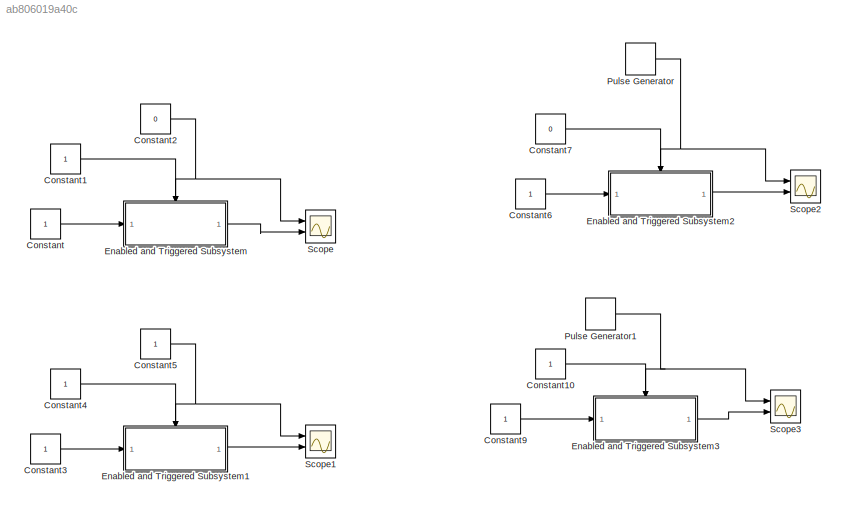
MODEL slx_ab806019a40c
KIND model
CONFIG AbsTol = auto
CONFIG EnableMultiTasking = off
CONFIG FixedStep = auto
CONFIG MaxStep = auto
CONFIG MinStep = auto
CONFIG RelTol = 1e-3
CONFIG SampleTimeConstraint = Unconstrained
CONFIG SolverName = VariableStepAuto
CONFIG StartTime = 0.0
CONFIG StopTime = 10.0
BLOCK [Constant] Constant
BLOCK [Constant] Constant1
BLOCK [Constant] Constant10
BLOCK [Constant] Constant2
  Value = 0
BLOCK [Constant] Constant3
BLOCK [Constant] Constant4
BLOCK [Constant] Constant5
BLOCK [Constant] Constant6
BLOCK [Constant] Constant7
  Value = 0
BLOCK [Constant] Constant9
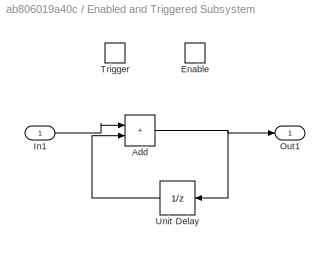
BLOCK [SubSystem] Enabled and Triggered Subsystem
  Ports = [1, 1, 1, 1]
  RequestExecContextInheritance = off
  TreatAsAtomicUnit = on
BLOCK [Sum] Enabled and Triggered Subsystem/Add
  IconShape = rectangular
  Ports = [2, 1]
BLOCK [EnablePort] Enabled and Triggered Subsystem/Enable
  Ports = []
BLOCK [Inport] Enabled and Triggered Subsystem/In1
BLOCK [Outport] Enabled and Triggered Subsystem/Out1
BLOCK [TriggerPort] Enabled and Triggered Subsystem/Trigger
  Ports = []
  StatesWhenEnabling = held
  VariantControl = (inherit)
BLOCK [UnitDelay] Enabled and Triggered Subsystem/Unit Delay
  HasFrameUpgradeWarning = on
  NameLocation = top
  SampleTime = -1
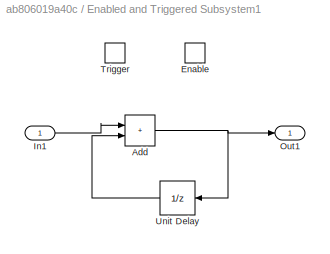
BLOCK [SubSystem] Enabled and Triggered Subsystem1
  Ports = [1, 1, 1, 1]
  RequestExecContextInheritance = off
  TreatAsAtomicUnit = on
BLOCK [Sum] Enabled and Triggered Subsystem1/Add
  IconShape = rectangular
  Ports = [2, 1]
BLOCK [EnablePort] Enabled and Triggered Subsystem1/Enable
  Ports = []
BLOCK [Inport] Enabled and Triggered Subsystem1/In1
BLOCK [Outport] Enabled and Triggered Subsystem1/Out1
BLOCK [TriggerPort] Enabled and Triggered Subsystem1/Trigger
  Ports = []
  StatesWhenEnabling = held
  VariantControl = (inherit)
BLOCK [UnitDelay] Enabled and Triggered Subsystem1/Unit Delay
  HasFrameUpgradeWarning = on
  NameLocation = top
  SampleTime = -1
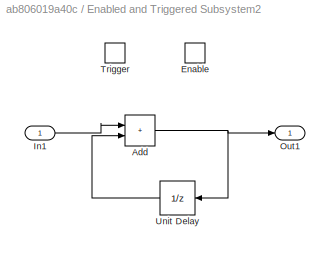
BLOCK [SubSystem] Enabled and Triggered Subsystem2
  Ports = [1, 1, 1, 1]
  RequestExecContextInheritance = off
  TreatAsAtomicUnit = on
BLOCK [Sum] Enabled and Triggered Subsystem2/Add
  IconShape = rectangular
  Ports = [2, 1]
BLOCK [EnablePort] Enabled and Triggered Subsystem2/Enable
  Ports = []
BLOCK [Inport] Enabled and Triggered Subsystem2/In1
BLOCK [Outport] Enabled and Triggered Subsystem2/Out1
BLOCK [TriggerPort] Enabled and Triggered Subsystem2/Trigger
  Ports = []
  StatesWhenEnabling = held
  VariantControl = (inherit)
BLOCK [UnitDelay] Enabled and Triggered Subsystem2/Unit Delay
  HasFrameUpgradeWarning = on
  NameLocation = top
  SampleTime = -1
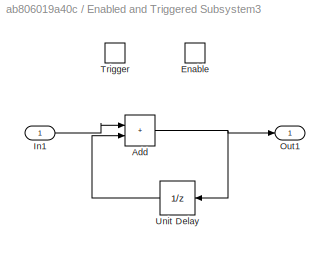
BLOCK [SubSystem] Enabled and Triggered Subsystem3
  Ports = [1, 1, 1, 1]
  RequestExecContextInheritance = off
  TreatAsAtomicUnit = on
BLOCK [Sum] Enabled and Triggered Subsystem3/Add
  IconShape = rectangular
  Ports = [2, 1]
BLOCK [EnablePort] Enabled and Triggered Subsystem3/Enable
  Ports = []
BLOCK [Inport] Enabled and Triggered Subsystem3/In1
BLOCK [Outport] Enabled and Triggered Subsystem3/Out1
BLOCK [TriggerPort] Enabled and Triggered Subsystem3/Trigger
  Ports = []
  StatesWhenEnabling = held
  VariantControl = (inherit)
BLOCK [UnitDelay] Enabled and Triggered Subsystem3/Unit Delay
  HasFrameUpgradeWarning = on
  NameLocation = top
  SampleTime = -1
BLOCK [DiscretePulseGenerator] Pulse Generator
  Ports = [0, 1]
  PulseType = Time based
  PulseWidth = 50
BLOCK [DiscretePulseGenerator] Pulse Generator1
  Ports = [0, 1]
  PulseType = Time based
  PulseWidth = 50
BLOCK [Scope] Scope
  Floating = off
  NumInputPorts = 2
  Ports = [2]
  ScopeSpecificationString = Simulink.scopes.TimeScopeBlockCfg('CurrentConfiguration', extmgr.ConfigurationSet(extmgr.Configuration('Core','General UI',true),extmgr.Configuration('Core','Source UI',true),extmgr.Configuration('Sources','WiredSimulink',true),extmgr.Configuration('Visuals','Time Domain',true,'SerializedDisplays',{struct('MinYLimReal','-1.00000','MaxYLimReal','1.00000','YLabelReal','','MinYLimMag','0.00000','MaxY...<+2011ch>
BLOCK [Scope] Scope1
  Floating = off
  NumInputPorts = 2
  Ports = [2]
  ScopeSpecificationString = Simulink.scopes.TimeScopeBlockCfg('CurrentConfiguration', extmgr.ConfigurationSet(extmgr.Configuration('Core','General UI',true),extmgr.Configuration('Core','Source UI',true),extmgr.Configuration('Sources','WiredSimulink',true,'DataLoggingVariableName','ScopeData1'),extmgr.Configuration('Visuals','Time Domain',true,'SerializedDisplays',{struct('MinYLimReal','-10','MaxYLimReal','10','YLabelReal',''...<+1607ch>
BLOCK [Scope] Scope2
  Floating = off
  NumInputPorts = 2
  Ports = [2]
  ScopeSpecificationString = Simulink.scopes.TimeScopeBlockCfg('CurrentConfiguration', extmgr.ConfigurationSet(extmgr.Configuration('Core','General UI',true),extmgr.Configuration('Core','Source UI',true),extmgr.Configuration('Sources','WiredSimulink',true,'DataLoggingVariableName','ScopeData2'),extmgr.Configuration('Visuals','Time Domain',true,'SerializedDisplays',{struct('MinYLimReal','-10','MaxYLimReal','10','YLabelReal',''...<+1607ch>
BLOCK [Scope] Scope3
  Floating = off
  NumInputPorts = 2
  Ports = [2]
  ScopeSpecificationString = Simulink.scopes.TimeScopeBlockCfg('CurrentConfiguration', extmgr.ConfigurationSet(extmgr.Configuration('Core','General UI',true),extmgr.Configuration('Core','Source UI',true),extmgr.Configuration('Sources','WiredSimulink',true,'DataLoggingVariableName','ScopeData3'),extmgr.Configuration('Visuals','Time Domain',true,'SerializedDisplays',{struct('MinYLimReal','-0.125','MaxYLimReal','1.125','YLabelRe...<+2048ch>
LINE Constant10:1 -> Enabled and Triggered Subsystem3:enable
LINE Constant1:1 -> Enabled and Triggered Subsystem:enable
NET Constant2:1 -> Enabled and Triggered Subsystem:trigger, Scope:1
LINE Constant3:1 -> Enabled and Triggered Subsystem1:1
LINE Constant4:1 -> Enabled and Triggered Subsystem1:enable
NET Constant5:1 -> Enabled and Triggered Subsystem1:trigger, Scope1:1
LINE Constant6:1 -> Enabled and Triggered Subsystem2:1
LINE Constant7:1 -> Enabled and Triggered Subsystem2:enable
LINE Constant9:1 -> Enabled and Triggered Subsystem3:1
LINE Constant:1 -> Enabled and Triggered Subsystem:1
NET Enabled and Triggered Subsystem/Add:1 -> Enabled and Triggered Subsystem/Out1:1, Enabled and Triggered Subsystem/Unit Delay:1
LINE Enabled and Triggered Subsystem/In1:1 -> Enabled and Triggered Subsystem/Add:1
LINE Enabled and Triggered Subsystem/Unit Delay:1 -> Enabled and Triggered Subsystem/Add:2
NET Enabled and Triggered Subsystem1/Add:1 -> Enabled and Triggered Subsystem1/Out1:1, Enabled and Triggered Subsystem1/Unit Delay:1
LINE Enabled and Triggered Subsystem1/In1:1 -> Enabled and Triggered Subsystem1/Add:1
LINE Enabled and Triggered Subsystem1/Unit Delay:1 -> Enabled and Triggered Subsystem1/Add:2
LINE Enabled and Triggered Subsystem1:1 -> Scope1:2
NET Enabled and Triggered Subsystem2/Add:1 -> Enabled and Triggered Subsystem2/Out1:1, Enabled and Triggered Subsystem2/Unit Delay:1
LINE Enabled and Triggered Subsystem2/In1:1 -> Enabled and Triggered Subsystem2/Add:1
LINE Enabled and Triggered Subsystem2/Unit Delay:1 -> Enabled and Triggered Subsystem2/Add:2
LINE Enabled and Triggered Subsystem2:1 -> Scope2:2
NET Enabled and Triggered Subsystem3/Add:1 -> Enabled and Triggered Subsystem3/Out1:1, Enabled and Triggered Subsystem3/Unit Delay:1
LINE Enabled and Triggered Subsystem3/In1:1 -> Enabled and Triggered Subsystem3/Add:1
LINE Enabled and Triggered Subsystem3/Unit Delay:1 -> Enabled and Triggered Subsystem3/Add:2
LINE Enabled and Triggered Subsystem3:1 -> Scope3:2
LINE Enabled and Triggered Subsystem:1 -> Scope:2
NET Pulse Generator1:1 -> Enabled and Triggered Subsystem3:trigger, Scope3:1
NET Pulse Generator:1 -> Enabled and Triggered Subsystem2:trigger, Scope2:1
note: NET lines group one-source signal fan-out (src -> all destinations, sorted); 1:1 wires keep LINE
